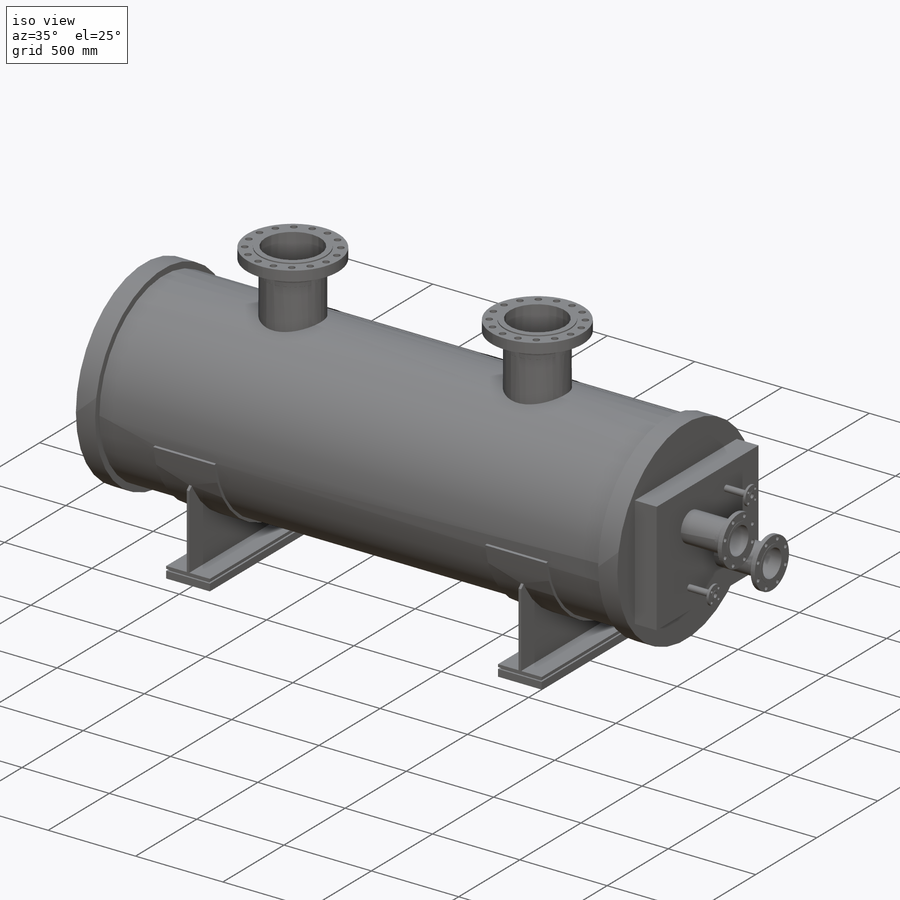
[diagram: iso view]
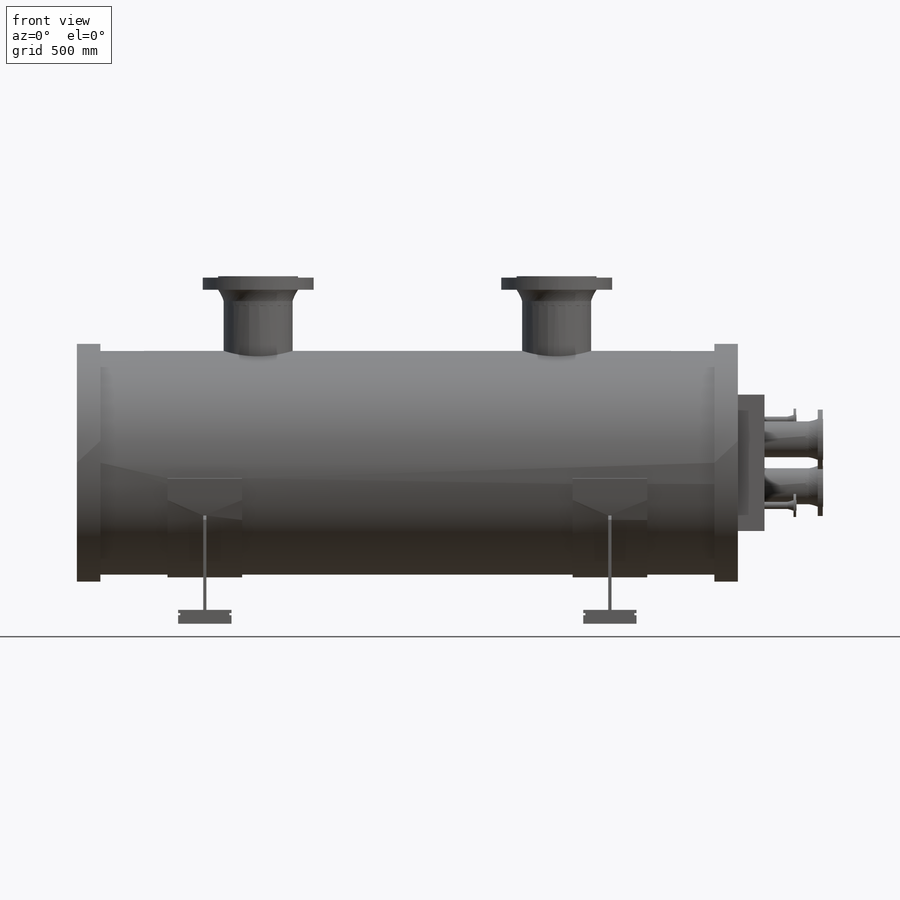
[diagram: front view]
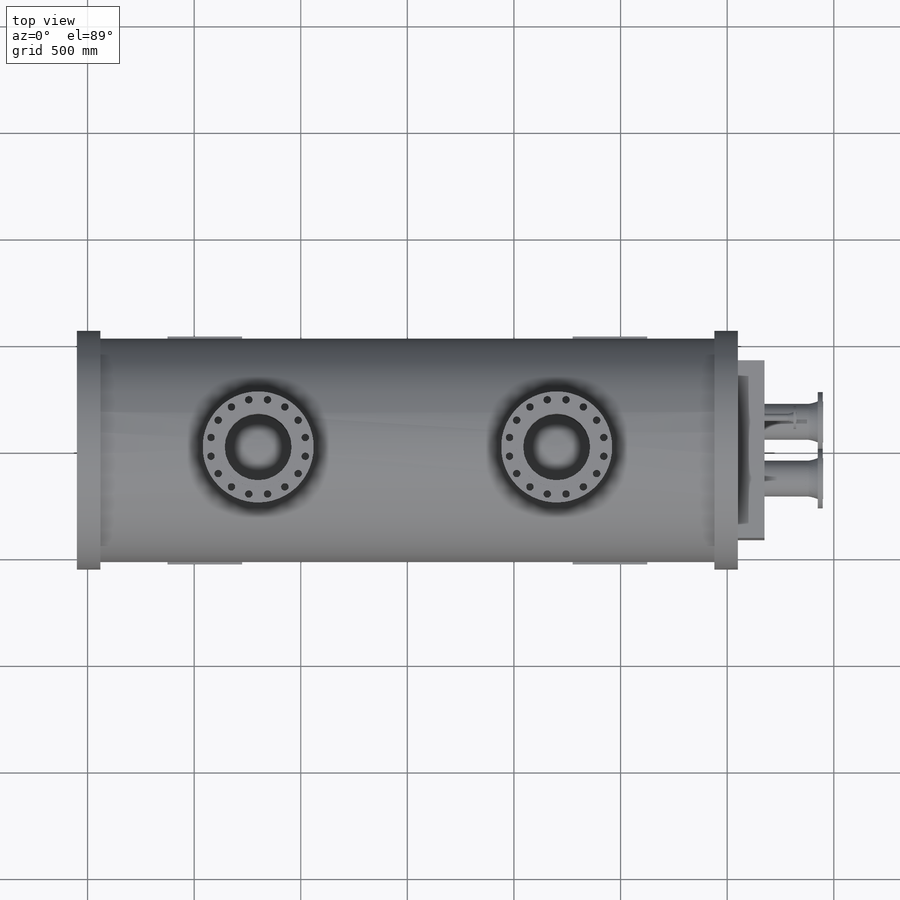
[diagram: top view]
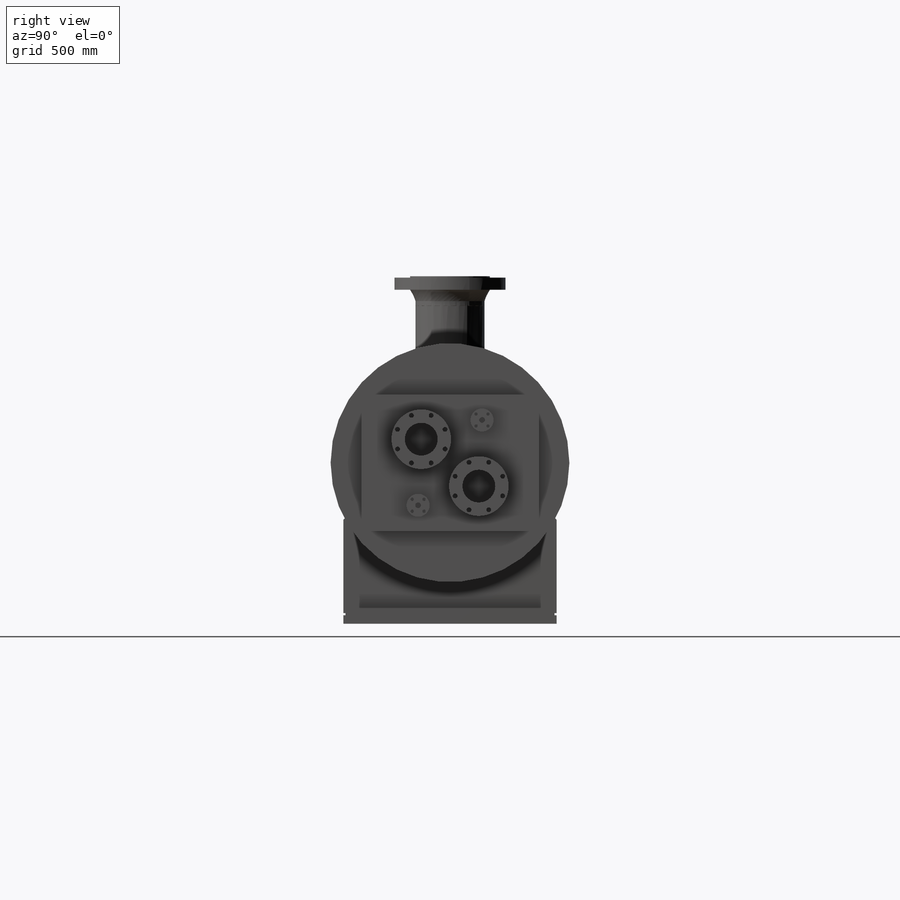
[diagram: right view]
SOLIDWORKS PART (.sldprt)
format: sldprt  version: not decoded by parser v0  size: 745,472 bytes
history: native  units: mm
features: sketch x10, extrude x7, move_body x6, revolve x2, mirror x2, material x1 + 6 further entries (+46 scaffold rows collapsed; 30 parser-record rows omitted)
feature tree (110):
  scaffold x46  (default folders/planes/origin — collapsed)
  material  "Material <not specified>"
  sketch  "Sketch2"  dims[D1=1550.0mm D2=110.0mm D3=560.0mm D4=1050.0mm]
  revolve  "Revolve1"  Angle=360deg
  sketch  "Sketch3"  dims[D1=520.0mm D2=15.0mm]
  extrude  "Extrude1"  Depth=175mm
  sketch  "Sketch4"  dims[c1.D1=500.0mm c1.D2=~5.368428mm c2.D2=45.0deg c2.D3=20.0mm c2.D4=690.0mm]
  extrude  "Extrude2"  Depth=7.5mm
  sketch  "Sketch5"  dims[D1=15.0mm]
  extrude  "Extrude3"  Depth=125mm
  mirror  "Mirror1"
  sketch  "Sketch6"
  extrude  "Extrude4"  Depth=125mm
  sketch  "Sketch7"  dims[c1.D5=168.4mm c1.D6=168.4mm c1.D1=110.0mm c1.D2=110.0mm c1.D3=135.0mm c1.D4=135.0mm c2.D1=275.0mm c2.D5=7.1mm c2.D6=10.0mm c2.D7=5.0mm]
  sketch  "Sketch8"  dims[D1=33.53mm D2=33.53mm D3=26.67mm D4=26.67mm D5=150.0mm D6=150.0mm D7=200.0mm D8=200.0mm]
  extrude  "Extrude5"  Depth=150mm
  sketch  "Sketch9"  dims[c1.D1=~193.602326mm c1.D2=313.69mm c2.D1=323.85mm c2.D3=875.0mm c2.D4=450.0mm c2.D5=700.0mm]
  revolve  "Revolve2"  Angle=360deg
  mirror  "Mirror2"
  "welding neck flange"
  parser-record x30  (decoder bookkeeping rows leaked as tree rows — omitted from the tree; the rows remain in map.json)
  move_body  "Body-Move/Copy2"
  "welding neck flange1"
  move_body  "Body-Move/Copy4"
  "welding neck flange2"
  move_body  "Body-Move/Copy6"
  "welding neck flange3"
  move_body  "Body-Move/Copy8"
  "welding neck flange4"
  move_body  "Body-Move/Copy10"
  "welding neck flange5"
  move_body  "Body-Move/Copy12"
  sketch  "Sketch11"  dims[D1=10.0mm D2=10.0mm]
  extrude  "Extrude6"  Depth=10mm
  sketch  "Sketch12"  dims[D1=0.0mm D2=0.0mm]
  extrude  "Extrude7"  Depth=40mm
decode coverage: 18 of 27 modeling features carry decoded parameters; 6 rows unclassified (native names shown)
note: ~ marks probable driven/reference dimensions
note: suppression state not decoded; provenance and decode notes live in map.json
